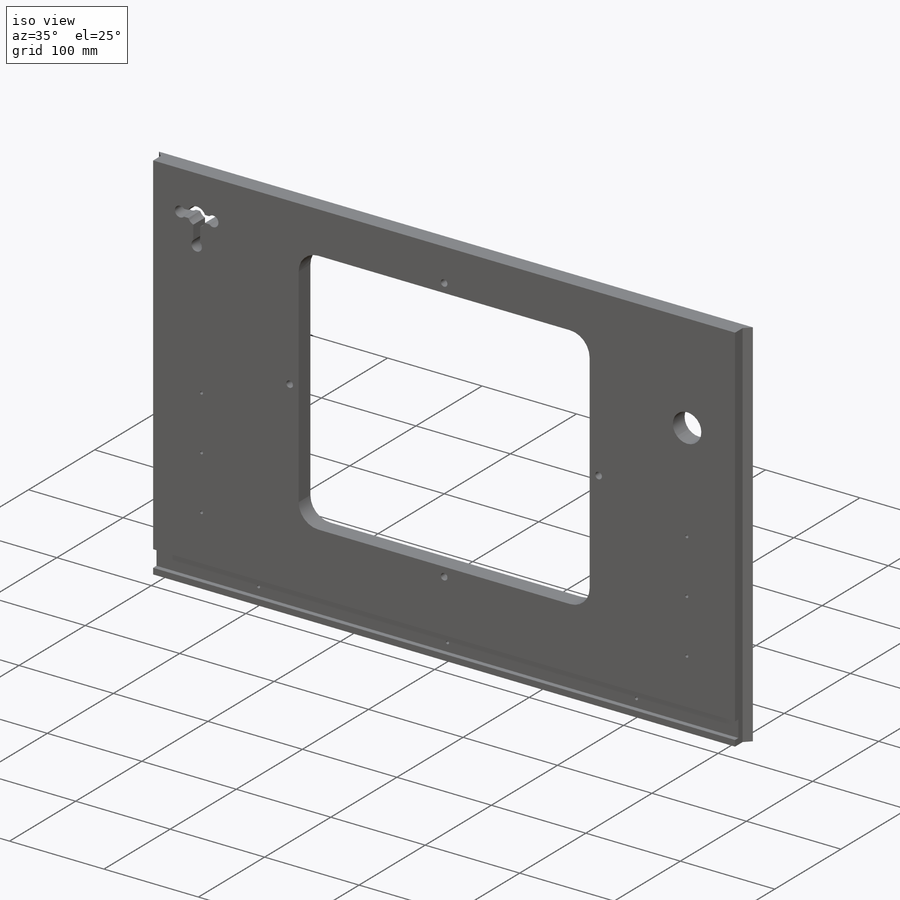
[diagram: iso view]
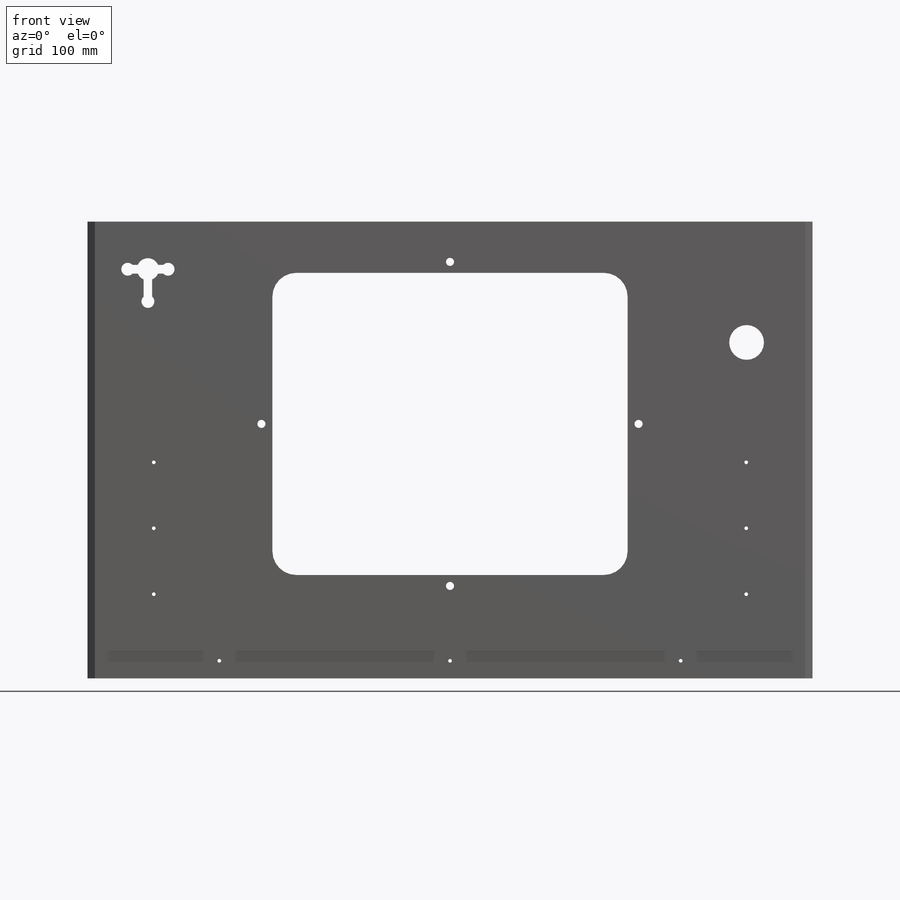
[diagram: front view]
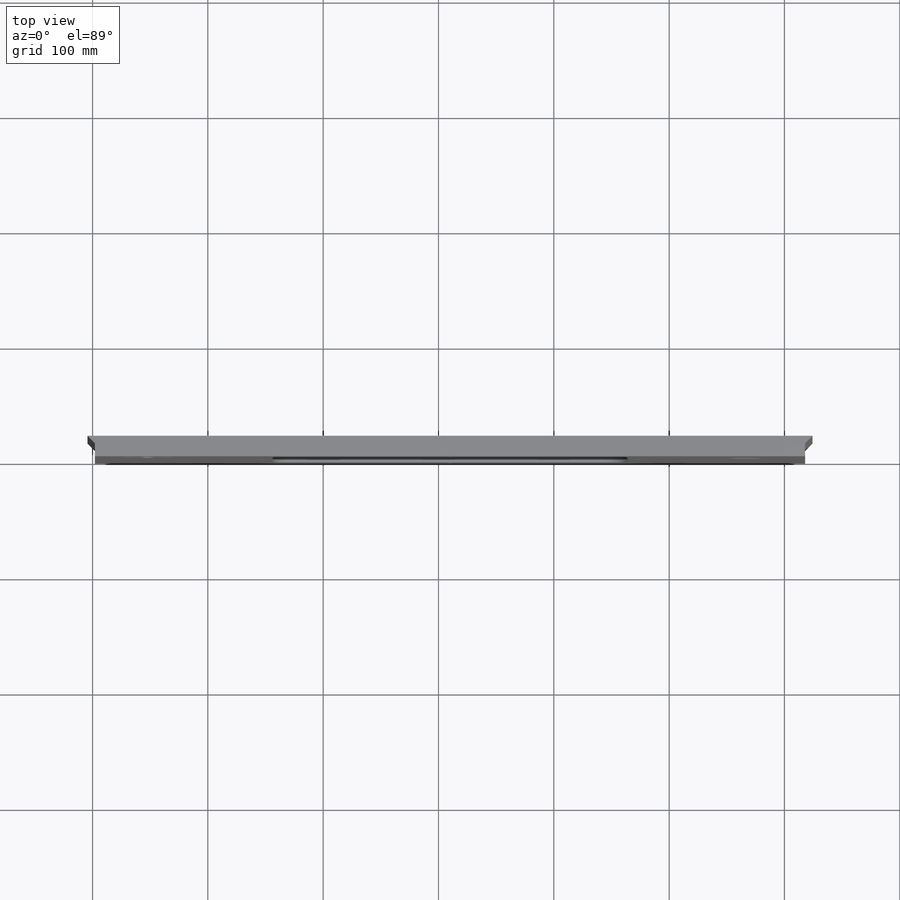
[diagram: top view]
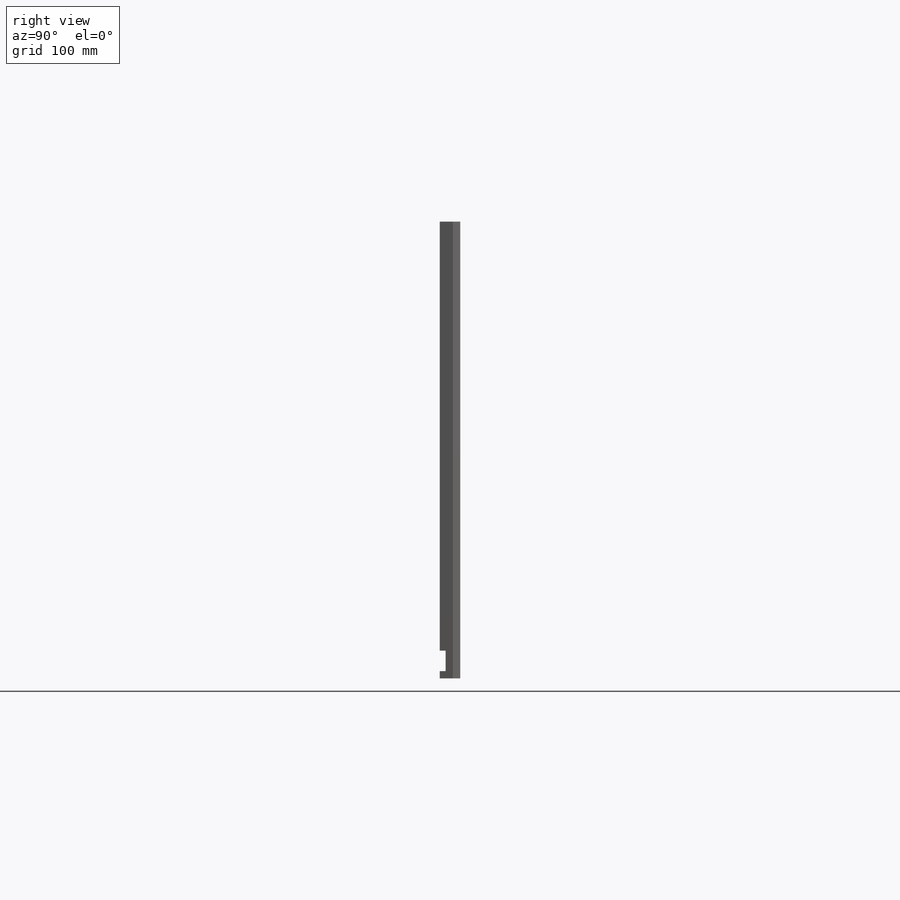
[diagram: right view]
SOLIDWORKS PART (.sldprt)
format: sldprt  version: not decoded by parser v0  size: 755,712 bytes
history: native  units: mm
features: sketch x5, cut_extrude x3, material x1, extrude x1, fillet x1 + 1 further entry (+15 scaffold rows collapsed)
feature tree (27):
  scaffold x15  (default folders/planes/origin — collapsed)
  material  "Pine"
  "Design Table"
  sketch  "Sketch1"
  sketch  "Sketch2"  dims[D1=628.65mm]
  extrude  "Extrude1"  Depth=17.78mm
  sketch  "Sketch3"  dims[c1.D1=57.4675mm c1.D2=57.4675mm c1.D3=57.15mm c1.D4=266.7mm c1.D5=220.6625mm c2.D4=34.925mm c2.D6=9.5123mm c2.D7=9.5123mm c2.D5=308.0004mm c3.D7=261.9629mm]
  cut_extrude  "Cut-Extrude1"  [1 undecoded]
  sketch  "Sketch4"  dims[c1.D1=8.89mm c1.D2=8.89mm c2.D1=17.78mm]
  cut_extrude  "Cut-Extrude2"  Depth=5.08mm
  sketch  "Sketch7"  dims[c1.D1=6.35mm c1.D2=6.35mm c1.D3=6.35mm c2.D1=6.35mm c2.D2=6.35mm c2.D3=6.35mm c2.D4=6.35mm]
  cut_extrude  "Cut-Extrude4"  [1 undecoded]
  fillet  "Fillet1"  Radius=20.6502mm
decode coverage: 7 of 10 modeling features carry decoded parameters; 1 rows unclassified (native names shown)
note: 2 parameter values undecoded
note: suppression state not decoded; provenance and decode notes live in map.json
